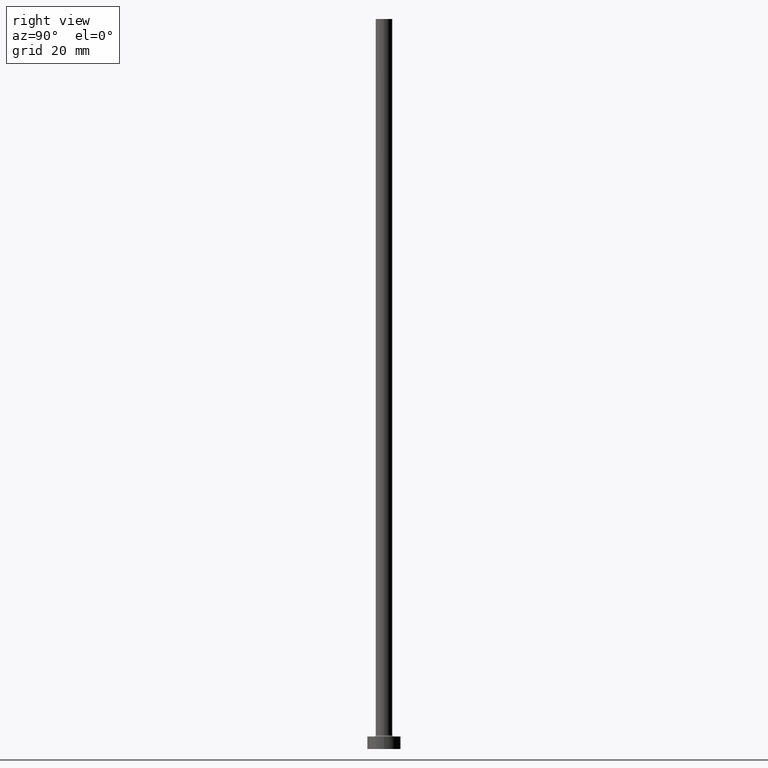
[diagram: clean part render]
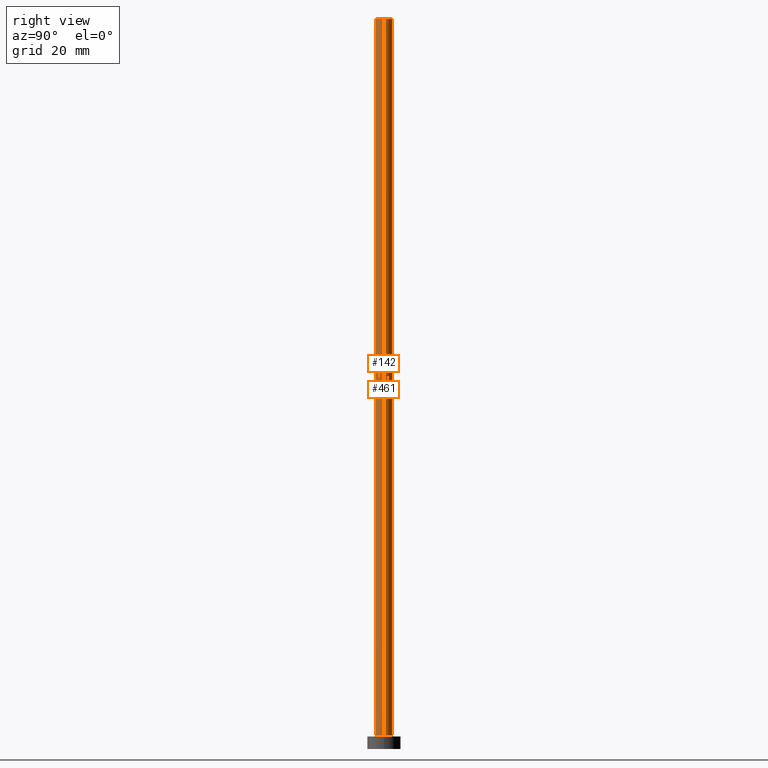
[diagram: same view with one multi-face feature highlighted, each face labeled with its STEP entity id]
A machine part, right view. The highlighted faces form ONE feature: a constant-radius fillet chain: 2 tangent blend faces with common blend radius 2 mm. The faces share edges in the B-rep.
Their STEP definitions:
[1] entity #142 (Cylinder):
#1 = VERTEX_POINT ( 'NONE', #370 ) ;
#3 = ORIENTED_EDGE ( 'NONE', *, *, #204, .T. ) ;
#41 = CARTESIAN_POINT ( 'NONE',  ( 2.000000000000000000, 2.449293598294706414E-16, 3.299999999999997158 ) ) ;
#42 = CARTESIAN_POINT ( 'NONE',  ( 0.000000000000000000, 0.000000000000000000, 3.299999999999997158 ) ) ;
#49 = DIRECTION ( 'NONE',  ( -0.000000000000000000, -0.000000000000000000, -1.000000000000000000 ) ) ;
#51 = CIRCLE ( 'NONE', #296, 2.000000000000000000 ) ;
#53 = VERTEX_POINT ( 'NONE', #438 ) ;
#54 = DIRECTION ( 'NONE',  ( 1.000000000000000000, 0.000000000000000000, 0.000000000000000000 ) ) ;
#55 = EDGE_CURVE ( 'NONE', #1, #53, #51, .T. ) ;
#81 = EDGE_LOOP ( 'NONE', ( #232, #304, #86, #3 ) ) ;
#84 = CARTESIAN_POINT ( 'NONE',  ( 0.000000000000000000, 0.000000000000000000, 175.0000000000000000 ) ) ;
#86 = ORIENTED_EDGE ( 'NONE', *, *, #218, .T. ) ;
#87 = CYLINDRICAL_SURFACE ( 'NONE', #321, 2.000000000000000000 ) ;
#89 = CIRCLE ( 'NONE', #346, 2.000000000000000000 ) ;
#105 = DIRECTION ( 'NONE',  ( -0.000000000000000000, -0.000000000000000000, -1.000000000000000000 ) ) ;
#142 = ADVANCED_FACE ( 'NONE', ( #401 ), #87, .T. ) ;
#143 = DIRECTION ( 'NONE',  ( 0.000000000000000000, 0.000000000000000000, 1.000000000000000000 ) ) ;
#180 = VERTEX_POINT ( 'NONE', #259 ) ;
#204 = EDGE_CURVE ( 'NONE', #180, #390, #89, .T. ) ;
#209 = VECTOR ( 'NONE', #281, 1000.000000000000000 ) ;
#218 = EDGE_CURVE ( 'NONE', #1, #180, #316, .T. ) ;
#232 = ORIENTED_EDGE ( 'NONE', *, *, #256, .F. ) ;
#244 = DIRECTION ( 'NONE',  ( 1.000000000000000000, 0.000000000000000000, 0.000000000000000000 ) ) ;
#256 = EDGE_CURVE ( 'NONE', #53, #390, #414, .T. ) ;
#259 = CARTESIAN_POINT ( 'NONE',  ( -2.000000000000000000, 0.000000000000000000, 3.299999999999997158 ) ) ;
#281 = DIRECTION ( 'NONE',  ( -0.000000000000000000, -0.000000000000000000, -1.000000000000000000 ) ) ;
#294 = DIRECTION ( 'NONE',  ( -1.000000000000000000, 0.000000000000000000, 0.000000000000000000 ) ) ;
#296 = AXIS2_PLACEMENT_3D ( 'NONE', #326, #367, #54 ) ;
#298 = CARTESIAN_POINT ( 'NONE',  ( 2.000000000000000000, 2.449293598294706414E-16, 175.0000000000000000 ) ) ;
#304 = ORIENTED_EDGE ( 'NONE', *, *, #55, .F. ) ;
#316 = LINE ( 'NONE', #386, #209 ) ;
#321 = AXIS2_PLACEMENT_3D ( 'NONE', #84, #49, #294 ) ;
#326 = CARTESIAN_POINT ( 'NONE',  ( 0.000000000000000000, 0.000000000000000000, 175.0000000000000000 ) ) ;
#346 = AXIS2_PLACEMENT_3D ( 'NONE', #42, #143, #244 ) ;
#367 = DIRECTION ( 'NONE',  ( 0.000000000000000000, 0.000000000000000000, 1.000000000000000000 ) ) ;
#370 = CARTESIAN_POINT ( 'NONE',  ( -2.000000000000000000, 0.000000000000000000, 175.0000000000000000 ) ) ;
#386 = CARTESIAN_POINT ( 'NONE',  ( -2.000000000000000000, 0.000000000000000000, 175.0000000000000000 ) ) ;
#390 = VERTEX_POINT ( 'NONE', #41 ) ;
#401 = FACE_OUTER_BOUND ( 'NONE', #81, .T. ) ;
#413 = VECTOR ( 'NONE', #105, 1000.000000000000000 ) ;
#414 = LINE ( 'NONE', #298, #413 ) ;
#438 = CARTESIAN_POINT ( 'NONE',  ( 2.000000000000000000, 2.449293598294706414E-16, 175.0000000000000000 ) ) ;
[2] entity #461 (Cylinder):
#1 = VERTEX_POINT ( 'NONE', #370 ) ;
#30 = AXIS2_PLACEMENT_3D ( 'NONE', #279, #106, #431 ) ;
#41 = CARTESIAN_POINT ( 'NONE',  ( 2.000000000000000000, 2.449293598294706414E-16, 3.299999999999997158 ) ) ;
#52 = DIRECTION ( 'NONE',  ( -0.000000000000000000, -0.000000000000000000, -1.000000000000000000 ) ) ;
#53 = VERTEX_POINT ( 'NONE', #438 ) ;
#74 = DIRECTION ( 'NONE',  ( 1.000000000000000000, 0.000000000000000000, 0.000000000000000000 ) ) ;
#105 = DIRECTION ( 'NONE',  ( -0.000000000000000000, -0.000000000000000000, -1.000000000000000000 ) ) ;
#106 = DIRECTION ( 'NONE',  ( 0.000000000000000000, 0.000000000000000000, 1.000000000000000000 ) ) ;
#107 = ORIENTED_EDGE ( 'NONE', *, *, #422, .T. ) ;
#144 = CARTESIAN_POINT ( 'NONE',  ( 0.000000000000000000, 0.000000000000000000, 3.299999999999997158 ) ) ;
#162 = CIRCLE ( 'NONE', #30, 2.000000000000000000 ) ;
#164 = CYLINDRICAL_SURFACE ( 'NONE', #245, 2.000000000000000000 ) ;
#180 = VERTEX_POINT ( 'NONE', #259 ) ;
#191 = FACE_OUTER_BOUND ( 'NONE', #212, .T. ) ;
#209 = VECTOR ( 'NONE', #281, 1000.000000000000000 ) ;
#212 = EDGE_LOOP ( 'NONE', ( #301, #430, #107, #420 ) ) ;
#218 = EDGE_CURVE ( 'NONE', #1, #180, #316, .T. ) ;
#230 = CIRCLE ( 'NONE', #356, 2.000000000000000000 ) ;
#231 = CARTESIAN_POINT ( 'NONE',  ( 0.000000000000000000, 0.000000000000000000, 175.0000000000000000 ) ) ;
#245 = AXIS2_PLACEMENT_3D ( 'NONE', #231, #52, #262 ) ;
#256 = EDGE_CURVE ( 'NONE', #53, #390, #414, .T. ) ;
#259 = CARTESIAN_POINT ( 'NONE',  ( -2.000000000000000000, 0.000000000000000000, 3.299999999999997158 ) ) ;
#262 = DIRECTION ( 'NONE',  ( -1.000000000000000000, 0.000000000000000000, 0.000000000000000000 ) ) ;
#279 = CARTESIAN_POINT ( 'NONE',  ( 0.000000000000000000, 0.000000000000000000, 175.0000000000000000 ) ) ;
#281 = DIRECTION ( 'NONE',  ( -0.000000000000000000, -0.000000000000000000, -1.000000000000000000 ) ) ;
#298 = CARTESIAN_POINT ( 'NONE',  ( 2.000000000000000000, 2.449293598294706414E-16, 175.0000000000000000 ) ) ;
#301 = ORIENTED_EDGE ( 'NONE', *, *, #426, .F. ) ;
#316 = LINE ( 'NONE', #386, #209 ) ;
#356 = AXIS2_PLACEMENT_3D ( 'NONE', #144, #387, #74 ) ;
#370 = CARTESIAN_POINT ( 'NONE',  ( -2.000000000000000000, 0.000000000000000000, 175.0000000000000000 ) ) ;
#386 = CARTESIAN_POINT ( 'NONE',  ( -2.000000000000000000, 0.000000000000000000, 175.0000000000000000 ) ) ;
#387 = DIRECTION ( 'NONE',  ( 0.000000000000000000, 0.000000000000000000, 1.000000000000000000 ) ) ;
#390 = VERTEX_POINT ( 'NONE', #41 ) ;
#413 = VECTOR ( 'NONE', #105, 1000.000000000000000 ) ;
#414 = LINE ( 'NONE', #298, #413 ) ;
#420 = ORIENTED_EDGE ( 'NONE', *, *, #218, .F. ) ;
#422 = EDGE_CURVE ( 'NONE', #390, #180, #230, .T. ) ;
#426 = EDGE_CURVE ( 'NONE', #53, #1, #162, .T. ) ;
#430 = ORIENTED_EDGE ( 'NONE', *, *, #256, .T. ) ;
#431 = DIRECTION ( 'NONE',  ( 1.000000000000000000, 0.000000000000000000, 0.000000000000000000 ) ) ;
#438 = CARTESIAN_POINT ( 'NONE',  ( 2.000000000000000000, 2.449293598294706414E-16, 175.0000000000000000 ) ) ;
#461 = ADVANCED_FACE ( 'NONE', ( #191 ), #164, .T. ) ;